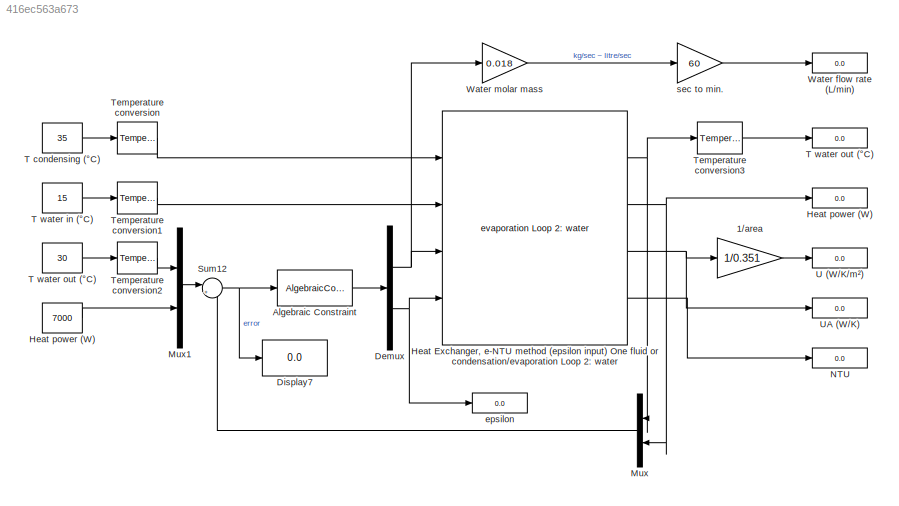
MODEL slx_416ec563a673
KIND model
CONFIG AbsTol = auto
CONFIG EnableMultiTasking = off
CONFIG FixedStep = auto
CONFIG MaxStep = auto
CONFIG MinStep = auto
CONFIG RelTol = 1e-3
CONFIG SampleTimeConstraint = Unconstrained
CONFIG Solver = VariableStepAuto
CONFIG SolverName = VariableStepAuto
CONFIG StartTime = 0.0
CONFIG StopTime = 0
BLOCK [Gain] 1//area
  Gain = 1/0.351
  OutDataTypeStr = Inherit: Inherit via internal rule
  ParamDataTypeStr = Inherit: Inherit via internal rule
  SaturateOnIntegerOverflow = off
BLOCK [AlgebraicConstraint] Algebraic Constraint
  InitialGuess = 1
  Solver = Trust region
BLOCK [Demux] Demux
  DisplayOption = bar
  Outputs = 2
  Ports = [1, 2]
BLOCK [Display] Display7
  Decimation = 1
  Format = short_e
  Ports = [1]
BLOCK [Reference] Heat Exchanger, e-NTU method (epsilon input) One fluid or condensation//evaporation Loop 2: water  REF=thermochemical/Heat exchangers/Heat Exchanger, e-NTU method (epsilon input)  (lib defined in slx_f9e0643dc704)
One fluid or condensation//evaporation
Loop 2: water
  Ports = [4, 4]
  SourceBlock = thermochemical/Heat exchangers/Heat Exchanger, e-NTU method (epsilon input)\nOne fluid or condensation//evaporation\nLoop 2: water
  SourceProductName = @ Thermochemical
  SourceType = heat_exchanger_one_fluid_eNTU_inv
BLOCK [Constant] Heat power (W)
  Value = 7000
BLOCK [Display] Heat power (W) 
  Decimation = 1
  Ports = [1]
BLOCK [Mux] Mux
  DisplayOption = bar
  Inputs = 2
  Ports = [2, 1]
BLOCK [Mux] Mux1
  DisplayOption = bar
  Inputs = 2
  Ports = [2, 1]
BLOCK [Display] NTU
  Decimation = 1
  Ports = [1]
BLOCK [Sum] Sum12
  IconShape = round
  InputSameDT = off
  Inputs = |+-
  OutDataTypeStr = Inherit: Inherit via internal rule
  Ports = [2, 1]
  SaturateOnIntegerOverflow = off
BLOCK [Constant] T condensing (°C)
  Value = 35
BLOCK [Constant] T water in (°C)
  Value = 15
BLOCK [Constant] T water out (°C)
  Value = 30
BLOCK [Display] T water out (°C) 
  Decimation = 1
  Ports = [1]
BLOCK [Reference] Temperature conversion  REF=thermochemical/Conversions/Temperature  (lib defined in slx_f9e0643dc704)
conversion
  Ports = [1, 1]
  SourceBlock = thermochemical/Conversions/Temperature\nconversion
  SourceProductName = @ Thermochemical
  SourceType = convert_temperature
BLOCK [Reference] Temperature conversion1  REF=thermochemical/Conversions/Temperature  (lib defined in slx_f9e0643dc704)
conversion
  Ports = [1, 1]
  SourceBlock = thermochemical/Conversions/Temperature\nconversion
  SourceProductName = @ Thermochemical
  SourceType = convert_temperature
BLOCK [Reference] Temperature conversion2  REF=thermochemical/Conversions/Temperature  (lib defined in slx_f9e0643dc704)
conversion
  Ports = [1, 1]
  SourceBlock = thermochemical/Conversions/Temperature\nconversion
  SourceProductName = @ Thermochemical
  SourceType = convert_temperature
BLOCK [Reference] Temperature conversion3  REF=thermochemical/Conversions/Temperature  (lib defined in slx_f9e0643dc704)
conversion
  Ports = [1, 1]
  SourceBlock = thermochemical/Conversions/Temperature\nconversion
  SourceProductName = @ Thermochemical
  SourceType = convert_temperature
BLOCK [Display] U (W//K//m²)
  Decimation = 1
  Ports = [1]
BLOCK [Display] UA (W//K)
  Decimation = 1
  Ports = [1]
BLOCK [Display] Water flow rate (L//min)
  Decimation = 1
  Ports = [1]
BLOCK [Gain] Water molar mass
  Gain = 0.018
  OutDataTypeStr = Inherit: Inherit via internal rule
  ParamDataTypeStr = Inherit: Inherit via internal rule
  SaturateOnIntegerOverflow = off
BLOCK [Display] epsilon
  Decimation = 1
  Ports = [1]
BLOCK [Gain] sec to min.
  Gain = 60
  OutDataTypeStr = Inherit: Inherit via internal rule
  ParamDataTypeStr = Inherit: Inherit via internal rule
  SaturateOnIntegerOverflow = off
LINE 1//area:1 -> U (W//K//m²):1
LINE Algebraic Constraint:1 -> Demux:1
NET Demux:1 -> Heat Exchanger, e-NTU method (epsilon input) One fluid or condensation//evaporation Loop 2: water:3, Water molar mass:1
NET Demux:2 -> Heat Exchanger, e-NTU method (epsilon input) One fluid or condensation//evaporation Loop 2: water:4, epsilon:1
NET Heat Exchanger, e-NTU method (epsilon input) One fluid or condensation//evaporation Loop 2: water:1 -> Mux:1, Temperature conversion3:1
NET Heat Exchanger, e-NTU method (epsilon input) One fluid or condensation//evaporation Loop 2: water:2 -> Heat power (W) :1, Mux:2
NET Heat Exchanger, e-NTU method (epsilon input) One fluid or condensation//evaporation Loop 2: water:3 -> 1//area:1, UA (W//K):1
LINE Heat Exchanger, e-NTU method (epsilon input) One fluid or condensation//evaporation Loop 2: water:4 -> NTU:1
LINE Heat power (W):1 -> Mux1:2
LINE Mux1:1 -> Sum12:1
LINE Mux:1 -> Sum12:2
NET Sum12:1 -> Algebraic Constraint:1, Display7:1
LINE T condensing (°C):1 -> Temperature conversion:1
LINE T water in (°C):1 -> Temperature conversion1:1
LINE T water out (°C):1 -> Temperature conversion2:1
LINE Temperature conversion1:1 -> Heat Exchanger, e-NTU method (epsilon input) One fluid or condensation//evaporation Loop 2: water:2
LINE Temperature conversion2:1 -> Mux1:1
LINE Temperature conversion3:1 -> T water out (°C) :1
LINE Temperature conversion:1 -> Heat Exchanger, e-NTU method (epsilon input) One fluid or condensation//evaporation Loop 2: water:1
LINE Water molar mass:1 -> sec to min.:1
LINE sec to min.:1 -> Water flow rate (L//min):1
note: NET lines group one-source signal fan-out (src -> all destinations, sorted); 1:1 wires keep LINE
